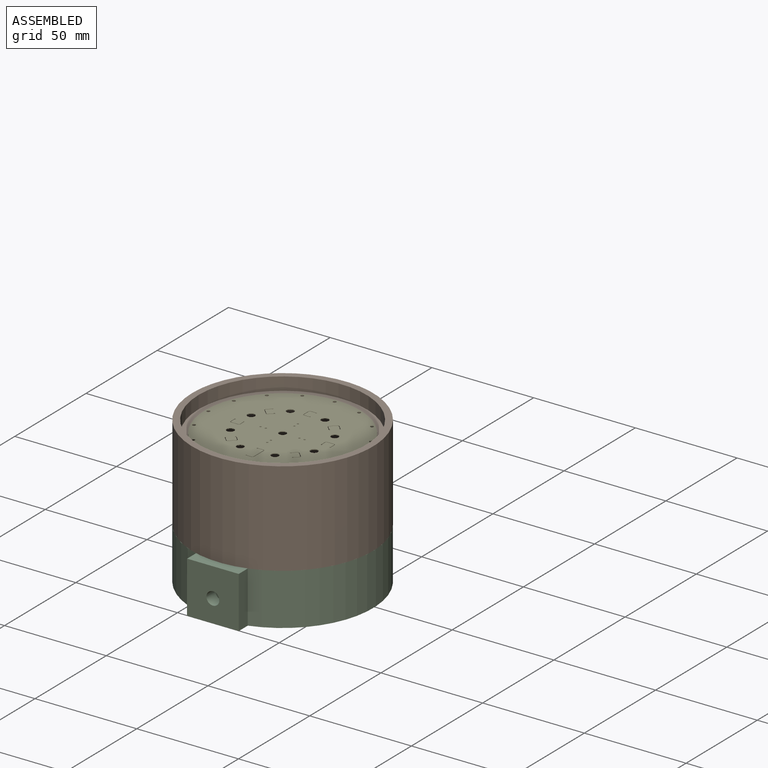
[diagram: assembled view]
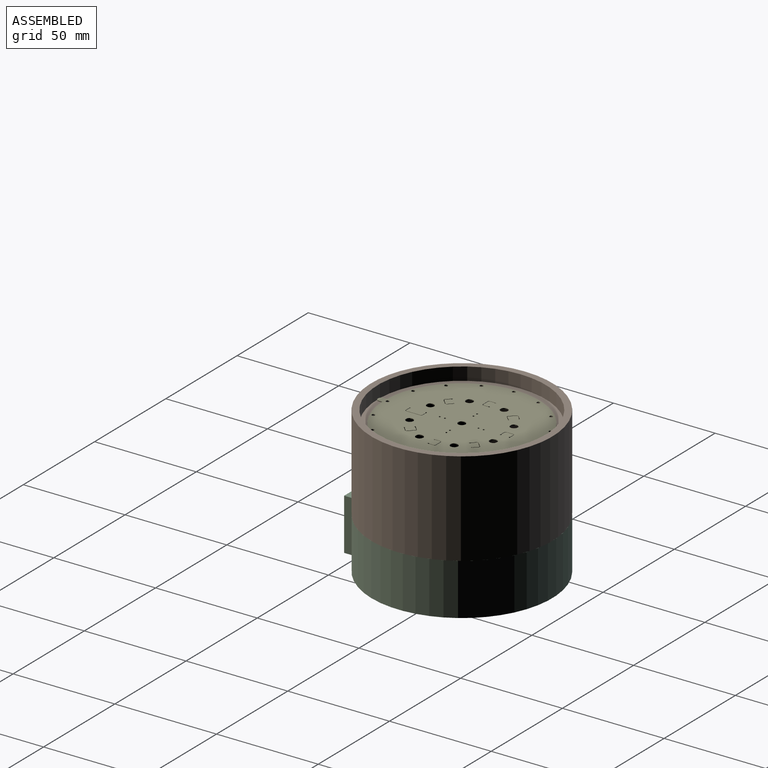
[diagram: assembled view, second angle]
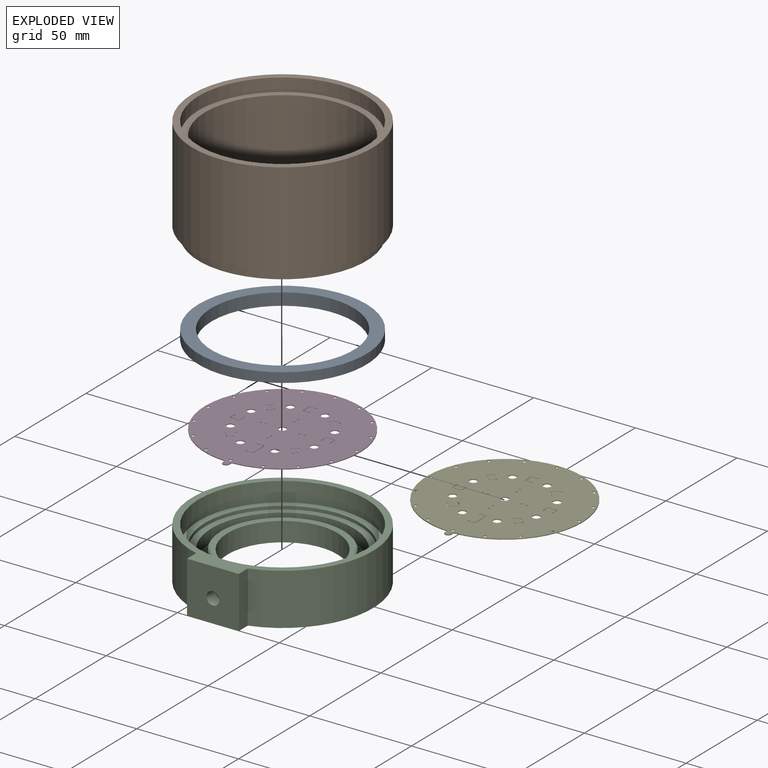
[diagram: exploded view]
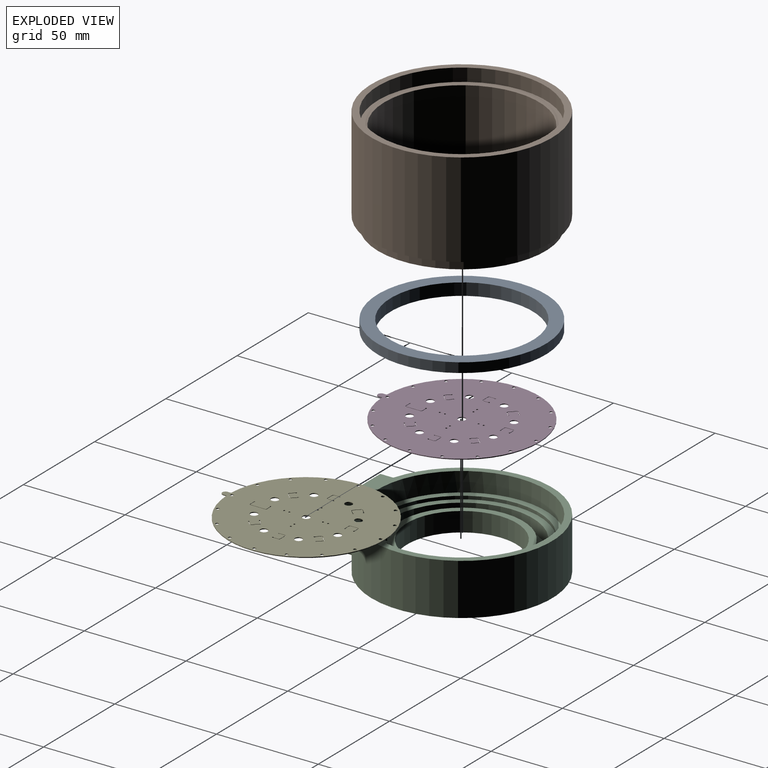
[diagram: exploded view, second angle]
ASSEMBLY  parts=5 mates=3
PART A: 6 faces, bbox 82.6x82.6x6 mm
  f0: plane 76.2x76.2mm, normal (0,0,-1), area 728.4mm2, adj f1,f5
  f1: cylinder r=38.1mm len=76.2mm, axis (0,0,-1), area 288.8mm2, adj f0,f2
  f2: plane 82.55x82.55mm, normal (0,0,-1), area 791.7mm2, adj f1,f3
  f3: cylinder r=41.27mm len=82.55mm, axis (0,0,-1), area 1235.1mm2, adj f2,f4
  f4: plane 82.55x82.55mm, normal (0,0,1), area 1520.1mm2, adj f3,f5
  f5: cylinder r=34.92mm len=69.85mm, axis (0,0,-1), area 1309.8mm2, adj f0,f4
PART B: 8 faces, bbox 88.9x88.9x51.2 mm
  f0: plane 82.55x82.55mm, normal (0,0,-1), area 791.7mm2, adj f1,f7
  f1: cylinder r=41.27mm len=82.55mm, axis (0,0,-1), area 1235.1mm2, adj f0,f2
  f2: plane 88.9x88.9mm, normal (0,0,-1), area 855.1mm2, adj f1,f3
  f3: cylinder r=44.45mm len=88.9mm, axis (0,0,-1), area 12964.1mm2, adj f2,f4
  f4: plane 88.9x88.9mm, normal (0,0,1), area 855.1mm2, adj f3,f5
  f5: cylinder r=41.27mm len=82.55mm, axis (0,0,-1), area 1646.8mm2, adj f4,f6
  f6: plane 82.55x82.55mm, normal (0,0,1), area 791.7mm2, adj f5,f7
  f7: cylinder r=38.1mm len=76.2mm, axis (0,0,-1), area 10732.1mm2, adj f0,f6
PART C: 43 faces, bbox 88.9x93.4x25.4 mm
  f0: cylinder r=1.59mm len=7.71mm, axis (0,1,0), area 76.7mm2, adj f1,f39
  f1: cylinder r=34.92mm len=69.85mm, axis (0,0,-1), area 1385.5mm2, adj f0,f8,f9
  f2: cylinder r=44.45mm len=88.9mm, axis (0,0,-1), area 6439.6mm2, adj f3,f4,f17,f18
  f3: plane 93.4x88.9mm, normal (0,0,-1), area 984.8mm2, adj f2,f16,f17,f18,f19
  f4: plane 93.4x88.9mm, normal (0,0,1), area 984.8mm2, adj f2,f5,f17,f18,f19
  f5: cylinder r=41.27mm len=82.55mm, axis (0,0,-1), area 2470.2mm2, adj f4,f6
  f6: plane 82.55x82.55mm, normal (0,0,1), area 782.7mm2, adj f5,f7,f40,f41,f42
  f7: cylinder r=38.1mm len=76.2mm, axis (0,0,-1), area 375mm2, adj f6,f8,f40,f42
  f8: plane 79.38x76.2mm, normal (0,0,1), area 737.4mm2, adj f1,f7,f40,f41,f42
  f9: plane 69.85x69.85mm, normal (0,0,1), area 831.3mm2, adj f1,f10,f20,f21,f22,f23,f24,f25
  f10: cylinder r=30.16mm len=60.33mm, axis (0,0,-1), area 1203.4mm2, adj f9,f11
  f11: plane 60.33x60.33mm, normal (0,0,1), area 570mm2, adj f10,f12
  f12: cylinder r=26.99mm len=53.98mm, axis (0,0,-1), area 1615.1mm2, adj f11,f13
  f13: plane 76.2x76.2mm, normal (0,0,-1), area 2129.8mm2, adj f12,f14,f20,f21,f22,f23,f24,f25
  f14: cylinder r=38.1mm len=76.2mm, axis (0,0,-1), area 380mm2, adj f13,f15
  f15: plane 82.55x82.55mm, normal (0,0,-1), area 791.7mm2, adj f14,f16
  f16: cylinder r=41.27mm len=82.55mm, axis (0,0,-1), area 823.4mm2, adj f3,f15
  f17: plane 25.4x6.35mm, normal (-1,0,0), area 161.3mm2, adj f2,f3,f4,f19
  f18: plane 25.4x6.35mm, normal (1,0,0), area 161.3mm2, adj f2,f3,f4,f19
  f19: plane 25.4x25.4mm, normal (0,-1,0), area 613.5mm2, adj f3,f4,f17,f18,f38
  f20: cylinder r=1.59mm len=3.18mm, axis (0,0,1), area 31.7mm2, adj f9,f13
  f21: cylinder r=1.59mm len=3.18mm, axis (0,0,1), area 31.7mm2, adj f9,f13
  f22: cylinder r=1.59mm len=3.18mm, axis (0,0,1), area 31.7mm2, adj f9,f13
  f23: cylinder r=1.59mm len=3.18mm, axis (0,0,1), area 31.7mm2, adj f9,f13
  f24: cylinder r=1.59mm len=3.18mm, axis (0,0,1), area 31.7mm2, adj f9,f13
  f25: cylinder r=1.59mm len=3.18mm, axis (0,0,1), area 31.7mm2, adj f9,f13
  f26: cylinder r=1.59mm len=3.18mm, axis (0,0,1), area 31.7mm2, adj f9,f13
  f27: cylinder r=1.59mm len=3.18mm, axis (0,0,1), area 31.7mm2, adj f9,f13
  f28: cylinder r=1.59mm len=3.18mm, axis (0,0,1), area 31.7mm2, adj f9,f13
  f29: cylinder r=1.59mm len=3.18mm, axis (0,0,1), area 31.7mm2, adj f9,f13
  f30: cylinder r=1.59mm len=3.18mm, axis (0,0,1), area 31.7mm2, adj f9,f13
  f31: cylinder r=1.59mm len=3.18mm, axis (0,0,1), area 31.7mm2, adj f9,f13
  f32: cylinder r=1.59mm len=3.18mm, axis (0,0,1), area 31.7mm2, adj f9,f13
  f33: cylinder r=1.59mm len=3.18mm, axis (0,0,1), area 31.7mm2, adj f9,f13
  f34: cylinder r=1.59mm len=3.18mm, axis (0,0,1), area 31.7mm2, adj f9,f13
  f35: cylinder r=1.59mm len=3.18mm, axis (0,0,1), area 31.7mm2, adj f9,f13
  f36: cylinder r=1.59mm len=3.18mm, axis (0,0,1), area 31.7mm2, adj f9,f13
  f37: cylinder r=1.59mm len=3.18mm, axis (0,0,1), area 31.7mm2, adj f9,f13
  f38: cylinder r=3.17mm len=6.35mm, axis (0,-1,0), area 126.7mm2, adj f19,f39
  f39: plane 6.35x6.35mm, normal (0,-1,0), area 23.8mm2, adj f0,f38
  f40: plane 1.62x1.59mm, normal (1,0,0), area 2.6mm2, adj f6,f7,f8,f41
  f41: cylinder r=1.59mm len=3.18mm, axis (0,0,-1), area 7.9mm2, adj f6,f8,f40,f42
  f42: plane 1.62x1.59mm, normal (-1,0,0), area 2.6mm2, adj f6,f7,f8,f41
PART D: 167 faces, bbox 79.4x76.2x0.4 mm
  f0: cylinder r=0.44mm len=0.89mm, axis (0,0,1), area 1.1mm2, adj f144,f145
  f1: cylinder r=0.44mm len=0.89mm, axis (0,0,1), area 1.1mm2, adj f144,f145
  f2: cylinder r=0.44mm len=0.89mm, axis (0,0,1), area 1.1mm2, adj f144,f145
  f3: cylinder r=0.44mm len=0.89mm, axis (0,0,1), area 1.1mm2, adj f144,f145
  f4: cylinder r=0.44mm len=0.89mm, axis (0,0,1), area 1.1mm2, adj f144,f145
  f5: cylinder r=0.44mm len=0.89mm, axis (0,0,1), area 1.1mm2, adj f144,f145
  f6: cylinder r=38.1mm len=76.2mm, axis (0,0,-1), area 90mm2, adj f144,f145,f162,f164
  f7: plane 2.29x0.38mm, normal (1,0,0), area 0.9mm2, adj f8,f143,f144,f145
  f8: cylinder r=0.51mm len=0.51mm, axis (0,0,-1), area 0.3mm2, adj f7,f9,f144,f145
  f9: plane 3.3x0.38mm, normal (0,1,0), area 1.3mm2, adj f8,f10,f144,f145
  f10: cylinder r=0.51mm len=0.51mm, axis (0,0,-1), area 0.3mm2, adj f9,f11,f144,f145
  f11: plane 2.29x0.38mm, normal (-1,0,0), area 0.9mm2, adj f10,f12,f144,f145
  f12: plane 0.38x0.38mm, normal (-0.71,-0.71,0), area 0.2mm2, adj f11,f13,f144,f145
  f13: plane 0.38x0.38mm, normal (-0.71,0.71,0), area 0.2mm2, adj f12,f14,f144,f145
  f14: plane 0.38x0.25mm, normal (0,1,0), area 0.1mm2, adj f13,f15,f144,f145
  f15: plane 3.05x0.38mm, normal (1,0,0), area 1.2mm2, adj f14,f16,f144,f145
  f16: cylinder r=0.76mm len=0.76mm, axis (0,0,-1), area 0.5mm2, adj f15,f17,f144,f145
  f17: plane 3.3x0.38mm, normal (0,-1,0), area 1.3mm2, adj f16,f18,f144,f145
  f18: cylinder r=0.76mm len=0.76mm, axis (0,0,-1), area 0.5mm2, adj f17,f19,f144,f145
  f19: plane 3.05x0.38mm, normal (-1,0,0), area 1.2mm2, adj f18,f20,f144,f145
  f20: plane 0.38x0.25mm, normal (0,1,0), area 0.1mm2, adj f19,f21,f144,f145
  f21: plane 0.38x0.38mm, normal (0.71,0.71,0), area 0.2mm2, adj f20,f143,f144,f145
  f22: plane 0.38x0.18mm, normal (-0.71,0.71,0), area 0.1mm2, adj f23,f127,f144,f145
  f23: plane 0.54x0.38mm, normal (0,1,0), area 0.2mm2, adj f22,f24,f144,f145
  f24: plane 0.54x0.38mm, normal (1,0,0), area 0.2mm2, adj f23,f25,f144,f145
  f25: plane 1.62x1.62mm, normal (0.71,0.71,0), area 0.9mm2, adj f24,f26,f144,f145
  f26: cylinder r=0.51mm len=0.72mm, axis (0,0,-1), area 0.3mm2, adj f25,f27,f144,f145
  f27: plane 2.34x2.34mm, normal (-0.71,0.71,0), area 1.3mm2, adj f26,f28,f144,f145
  f28: cylinder r=0.51mm len=0.72mm, axis (0,0,-1), area 0.3mm2, adj f27,f29,f144,f145
  f29: plane 1.62x1.62mm, normal (-0.71,-0.71,0), area 0.9mm2, adj f28,f30,f144,f145
  f30: plane 0.54x0.38mm, normal (0,-1,0), area 0.2mm2, adj f29,f31,f144,f145
  f31: plane 0.54x0.38mm, normal (-1,0,0), area 0.2mm2, adj f30,f32,f144,f145
  f32: plane 0.38x0.18mm, normal (-0.71,0.71,0), area 0.1mm2, adj f31,f33,f144,f145
  f33: plane 2.16x2.16mm, normal (0.71,0.71,0), area 1.2mm2, adj f32,f34,f144,f145
  f34: cylinder r=0.76mm len=1.08mm, axis (0,0,-1), area 0.5mm2, adj f33,f35,f144,f145
  f35: plane 2.34x2.34mm, normal (0.71,-0.71,0), area 1.3mm2, adj f34,f36,f144,f145
  f36: cylinder r=0.76mm len=1.08mm, axis (0,0,-1), area 0.5mm2, adj f35,f127,f144,f145
  f37: plane 0.38x0.25mm, normal (-1,0,0), area 0.1mm2, adj f38,f128,f144,f145
  f38: plane 0.38x0.38mm, normal (-0.71,0.71,0), area 0.2mm2, adj f37,f39,f144,f145
  f39: plane 0.38x0.38mm, normal (0.71,0.71,0), area 0.2mm2, adj f38,f40,f144,f145
  f40: plane 2.29x0.38mm, normal (0,1,0), area 0.9mm2, adj f39,f41,f144,f145
  f41: cylinder r=0.51mm len=0.51mm, axis (0,0,-1), area 0.3mm2, adj f40,f42,f144,f145
  f42: plane 3.3x0.38mm, normal (-1,0,0), area 1.3mm2, adj f41,f43,f144,f145
  f43: cylinder r=0.51mm len=0.51mm, axis (0,0,-1), area 0.3mm2, adj f42,f44,f144,f145
  f44: plane 2.29x0.38mm, normal (0,-1,0), area 0.9mm2, adj f43,f45,f144,f145
  f45: plane 0.38x0.38mm, normal (0.71,-0.71,0), area 0.2mm2, adj f44,f46,f144,f145
  f46: plane 0.38x0.38mm, normal (-0.71,-0.71,0), area 0.2mm2, adj f45,f47,f144,f145
  f47: plane 0.38x0.25mm, normal (-1,0,0), area 0.1mm2, adj f46,f48,f144,f145
  f48: plane 3.05x0.38mm, normal (0,1,0), area 1.2mm2, adj f47,f49,f144,f145
  f49: cylinder r=0.76mm len=0.76mm, axis (0,0,-1), area 0.5mm2, adj f48,f50,f144,f145
  f50: plane 3.3x0.38mm, normal (1,0,0), area 1.3mm2, adj f49,f51,f144,f145
  f51: cylinder r=0.76mm len=0.76mm, axis (0,0,-1), area 0.5mm2, adj f50,f128,f144,f145
  f52: plane 0.38x0.18mm, normal (-0.71,-0.71,0), area 0.1mm2, adj f53,f129,f144,f145
  f53: plane 0.54x0.38mm, normal (-1,0,0), area 0.2mm2, adj f52,f54,f144,f145
  f54: plane 0.54x0.38mm, normal (0,1,0), area 0.2mm2, adj f53,f55,f144,f145
  f55: plane 1.62x1.62mm, normal (-0.71,0.71,0), area 0.9mm2, adj f54,f56,f144,f145
  f56: cylinder r=0.51mm len=0.72mm, axis (0,0,-1), area 0.3mm2, adj f55,f57,f144,f145
  f57: plane 2.34x2.34mm, normal (-0.71,-0.71,0), area 1.3mm2, adj f56,f58,f144,f145
  f58: cylinder r=0.51mm len=0.72mm, axis (0,0,-1), area 0.3mm2, adj f57,f59,f144,f145
  f59: plane 1.62x1.62mm, normal (0.71,-0.71,0), area 0.9mm2, adj f58,f60,f144,f145
  f60: plane 0.54x0.38mm, normal (1,0,0), area 0.2mm2, adj f59,f61,f144,f145
  f61: plane 0.54x0.38mm, normal (0,-1,0), area 0.2mm2, adj f60,f62,f144,f145
  f62: plane 0.38x0.18mm, normal (-0.71,-0.71,0), area 0.1mm2, adj f61,f63,f144,f145
  f63: plane 2.16x2.16mm, normal (-0.71,0.71,0), area 1.2mm2, adj f62,f64,f144,f145
  f64: cylinder r=0.76mm len=1.08mm, axis (0,0,-1), area 0.5mm2, adj f63,f65,f144,f145
  f65: plane 2.34x2.34mm, normal (0.71,0.71,0), area 1.3mm2, adj f64,f66,f144,f145
  f66: cylinder r=0.76mm len=1.08mm, axis (0,0,-1), area 0.5mm2, adj f65,f129,f144,f145
  f67: plane 0.38x0.18mm, normal (0.71,-0.71,0), area 0.1mm2, adj f68,f130,f144,f145
  f68: plane 0.54x0.38mm, normal (0,-1,0), area 0.2mm2, adj f67,f69,f144,f145
  f69: plane 0.54x0.38mm, normal (-1,0,0), area 0.2mm2, adj f68,f70,f144,f145
  f70: plane 1.62x1.62mm, normal (-0.71,-0.71,0), area 0.9mm2, adj f69,f71,f144,f145
  f71: cylinder r=0.51mm len=0.72mm, axis (0,0,-1), area 0.3mm2, adj f70,f72,f144,f145
  f72: plane 2.34x2.34mm, normal (0.71,-0.71,0), area 1.3mm2, adj f71,f73,f144,f145
  f73: cylinder r=0.51mm len=0.72mm, axis (0,0,-1), area 0.3mm2, adj f72,f74,f144,f145
  f74: plane 1.62x1.62mm, normal (0.71,0.71,0), area 0.9mm2, adj f73,f75,f144,f145
  f75: plane 0.54x0.38mm, normal (0,1,0), area 0.2mm2, adj f74,f76,f144,f145
  f76: plane 0.54x0.38mm, normal (1,0,0), area 0.2mm2, adj f75,f77,f144,f145
  f77: plane 0.38x0.18mm, normal (0.71,-0.71,0), area 0.1mm2, adj f76,f78,f144,f145
  f78: plane 2.16x2.16mm, normal (-0.71,-0.71,0), area 1.2mm2, adj f77,f79,f144,f145
  f79: cylinder r=0.76mm len=1.08mm, axis (0,0,-1), area 0.5mm2, adj f78,f80,f144,f145
  f80: plane 2.34x2.34mm, normal (-0.71,0.71,0), area 1.3mm2, adj f79,f81,f144,f145
  f81: cylinder r=0.76mm len=1.08mm, axis (0,0,-1), area 0.5mm2, adj f80,f130,f144,f145
  f82: plane 0.38x0.25mm, normal (1,0,0), area 0.1mm2, adj f83,f131,f144,f145
  f83: plane 0.38x0.38mm, normal (0.71,-0.71,0), area 0.2mm2, adj f82,f84,f144,f145
  f84: plane 0.38x0.38mm, normal (-0.71,-0.71,0), area 0.2mm2, adj f83,f85,f144,f145
  f85: plane 2.29x0.38mm, normal (0,-1,0), area 0.9mm2, adj f84,f86,f144,f145
  f86: cylinder r=0.51mm len=0.51mm, axis (0,0,-1), area 0.3mm2, adj f85,f87,f144,f145
  f87: plane 3.3x0.38mm, normal (1,0,0), area 1.3mm2, adj f86,f88,f144,f145
  f88: cylinder r=0.51mm len=0.51mm, axis (0,0,-1), area 0.3mm2, adj f87,f89,f144,f145
  f89: plane 2.29x0.38mm, normal (0,1,0), area 0.9mm2, adj f88,f90,f144,f145
  f90: plane 0.38x0.38mm, normal (-0.71,0.71,0), area 0.2mm2, adj f89,f91,f144,f145
  f91: plane 0.38x0.38mm, normal (0.71,0.71,0), area 0.2mm2, adj f90,f92,f144,f145
  f92: plane 0.38x0.25mm, normal (1,0,0), area 0.1mm2, adj f91,f93,f144,f145
  f93: plane 3.05x0.38mm, normal (0,-1,0), area 1.2mm2, adj f92,f94,f144,f145
  f94: cylinder r=0.76mm len=0.76mm, axis (0,0,-1), area 0.5mm2, adj f93,f95,f144,f145
  f95: plane 3.3x0.38mm, normal (-1,0,0), area 1.3mm2, adj f94,f96,f144,f145
  f96: cylinder r=0.76mm len=0.76mm, axis (0,0,-1), area 0.5mm2, adj f95,f131,f144,f145
  f97: plane 0.38x0.18mm, normal (0.71,0.71,0), area 0.1mm2, adj f98,f132,f144,f145
  f98: plane 0.54x0.38mm, normal (1,0,0), area 0.2mm2, adj f97,f99,f144,f145
  f99: plane 0.54x0.38mm, normal (0,-1,0), area 0.2mm2, adj f98,f100,f144,f145
  f100: plane 1.62x1.62mm, normal (0.71,-0.71,0), area 0.9mm2, adj f99,f101,f144,f145
  f101: cylinder r=0.51mm len=0.72mm, axis (0,0,-1), area 0.3mm2, adj f100,f102,f144,f145
  f102: plane 2.34x2.34mm, normal (0.71,0.71,0), area 1.3mm2, adj f101,f103,f144,f145
  f103: cylinder r=0.51mm len=0.72mm, axis (0,0,-1), area 0.3mm2, adj f102,f104,f144,f145
  f104: plane 1.62x1.62mm, normal (-0.71,0.71,0), area 0.9mm2, adj f103,f105,f144,f145
  f105: plane 0.54x0.38mm, normal (-1,0,0), area 0.2mm2, adj f104,f106,f144,f145
  f106: plane 0.54x0.38mm, normal (0,1,0), area 0.2mm2, adj f105,f107,f144,f145
  f107: plane 0.38x0.18mm, normal (0.71,0.71,0), area 0.1mm2, adj f106,f108,f144,f145
  f108: plane 2.16x2.16mm, normal (0.71,-0.71,0), area 1.2mm2, adj f107,f109,f144,f145
  f109: cylinder r=0.76mm len=1.08mm, axis (0,0,-1), area 0.5mm2, adj f108,f110,f144,f145
  f110: plane 2.34x2.34mm, normal (-0.71,-0.71,0), area 1.3mm2, adj f109,f111,f144,f145
  f111: cylinder r=0.76mm len=1.08mm, axis (0,0,-1), area 0.5mm2, adj f110,f132,f144,f145
  f112: plane 0.38x0.25mm, normal (0,-1,0), area 0.1mm2, adj f113,f133,f144,f145
  f113: plane 0.38x0.38mm, normal (-0.71,-0.71,0), area 0.2mm2, adj f112,f114,f144,f145
  f114: plane 0.38x0.38mm, normal (-0.71,0.71,0), area 0.2mm2, adj f113,f115,f144,f145
  f115: plane 2.29x0.38mm, normal (-1,0,0), area 0.9mm2, adj f114,f116,f144,f145
  f116: cylinder r=0.51mm len=0.51mm, axis (0,0,-1), area 0.3mm2, adj f115,f117,f144,f145
  f117: plane 6.87x0.38mm, normal (0,-1,0), area 2.6mm2, adj f116,f118,f144,f145
  f118: cylinder r=0.51mm len=0.51mm, axis (0,0,-1), area 0.3mm2, adj f117,f119,f144,f145
  f119: plane 2.29x0.38mm, normal (1,0,0), area 0.9mm2, adj f118,f120,f144,f145
  f120: plane 0.38x0.38mm, normal (0.71,0.71,0), area 0.2mm2, adj f119,f121,f144,f145
  f121: plane 0.38x0.38mm, normal (0.71,-0.71,0), area 0.2mm2, adj f120,f122,f144,f145
  f122: plane 0.38x0.25mm, normal (0,-1,0), area 0.1mm2, adj f121,f123,f144,f145
  f123: plane 3.05x0.38mm, normal (-1,0,0), area 1.2mm2, adj f122,f124,f144,f145
  f124: cylinder r=0.76mm len=0.76mm, axis (0,0,-1), area 0.5mm2, adj f123,f125,f144,f145
  f125: plane 6.87x0.38mm, normal (0,1,0), area 2.6mm2, adj f124,f126,f144,f145
  f126: cylinder r=0.76mm len=0.76mm, axis (0,0,-1), area 0.5mm2, adj f125,f133,f144,f145
  f127: plane 2.16x2.16mm, normal (-0.71,-0.71,0), area 1.2mm2, adj f22,f36,f144,f145
  f128: plane 3.05x0.38mm, normal (0,-1,0), area 1.2mm2, adj f37,f51,f144,f145
  f129: plane 2.16x2.16mm, normal (0.71,-0.71,0), area 1.2mm2, adj f52,f66,f144,f145
  f130: plane 2.16x2.16mm, normal (0.71,0.71,0), area 1.2mm2, adj f67,f81,f144,f145
  f131: plane 3.05x0.38mm, normal (0,1,0), area 1.2mm2, adj f82,f96,f144,f145
  f132: plane 2.16x2.16mm, normal (-0.71,0.71,0), area 1.2mm2, adj f97,f111,f144,f145
  f133: plane 3.05x0.38mm, normal (1,0,0), area 1.2mm2, adj f112,f126,f144,f145
  f134: cylinder r=1.83mm len=3.66mm, axis (0,0,-1), area 4.4mm2, adj f144,f145
  f135: cylinder r=1.83mm len=3.66mm, axis (0,0,-1), area 4.4mm2, adj f144,f145
  f136: cylinder r=1.83mm len=3.66mm, axis (0,0,-1), area 4.4mm2, adj f144,f145
  f137: cylinder r=1.83mm len=3.66mm, axis (0,0,-1), area 4.4mm2, adj f144,f145
  f138: cylinder r=1.83mm len=3.66mm, axis (0,0,-1), area 4.4mm2, adj f144,f145
  f139: cylinder r=1.83mm len=3.66mm, axis (0,0,-1), area 4.4mm2, adj f144,f145
  f140: cylinder r=1.83mm len=3.66mm, axis (0,0,-1), area 4.4mm2, adj f144,f145
  f141: cylinder r=1.83mm len=3.66mm, axis (0,0,-1), area 4.4mm2, adj f144,f145
  f142: cylinder r=1.83mm len=3.66mm, axis (0,0,-1), area 4.4mm2, adj f144,f145
  f143: plane 0.38x0.38mm, normal (0.71,-0.71,0), area 0.2mm2, adj f7,f21,f144,f145
  f144: plane 79.38x76.2mm, normal (0,0,1), area 4411.8mm2, adj f0,f1,f2,f3,f4,f5,f6,f7
  f145: plane 79.38x76.2mm, normal (0,0,-1), area 4411.8mm2, adj f0,f1,f2,f3,f4,f5,f6,f7
  f146: cylinder r=0.79mm len=1.59mm, axis (0,0,1), area 1.9mm2, adj f144,f145
  f147: cylinder r=0.79mm len=1.59mm, axis (0,0,1), area 1.9mm2, adj f144,f145
  f148: cylinder r=0.79mm len=1.59mm, axis (0,0,1), area 1.9mm2, adj f144,f145
  f149: cylinder r=0.79mm len=1.59mm, axis (0,0,1), area 1.9mm2, adj f144,f145
  f150: cylinder r=0.79mm len=1.59mm, axis (0,0,1), area 1.9mm2, adj f144,f145
  f151: cylinder r=0.79mm len=1.59mm, axis (0,0,1), area 1.9mm2, adj f144,f145
  f152: cylinder r=0.79mm len=1.59mm, axis (0,0,1), area 1.9mm2, adj f144,f145
  f153: cylinder r=0.79mm len=1.59mm, axis (0,0,1), area 1.9mm2, adj f144,f145
  f154: cylinder r=0.79mm len=1.59mm, axis (0,0,1), area 1.9mm2, adj f144,f145
  f155: cylinder r=0.79mm len=1.59mm, axis (0,0,1), area 1.9mm2, adj f144,f145
  f156: cylinder r=0.79mm len=1.59mm, axis (0,0,1), area 1.9mm2, adj f144,f145
  f157: cylinder r=0.79mm len=1.59mm, axis (0,0,1), area 1.9mm2, adj f144,f145
  f158: cylinder r=0.79mm len=1.59mm, axis (0,0,1), area 1.9mm2, adj f144,f145
  f159: cylinder r=0.79mm len=1.59mm, axis (0,0,1), area 1.9mm2, adj f144,f145
  f160: cylinder r=0.79mm len=1.59mm, axis (0,0,1), area 1.9mm2, adj f144,f145
  f161: cylinder r=0.79mm len=1.59mm, axis (0,0,1), area 1.9mm2, adj f144,f145
  f162: plane 1.63x0.38mm, normal (0,1,0), area 0.6mm2, adj f6,f144,f145,f163
  f163: cylinder r=1.59mm len=3.18mm, axis (0,0,1), area 1.9mm2, adj f144,f145,f162,f164
  f164: plane 1.63x0.38mm, normal (0,-1,0), area 0.6mm2, adj f6,f144,f145,f163
  f165: cylinder r=0.44mm len=0.89mm, axis (0,0,1), area 1.1mm2, adj f144,f145
  f166: cylinder r=0.44mm len=0.89mm, axis (0,0,1), area 1.1mm2, adj f144,f145
PART E: same geometry as D
PLACE A t=(-29.68,-5.21,16.49)mm
PLACE B t=(-29.68,-5.21,22.46)mm
PLACE C t=(-29.68,-5.21,1.82)mm fixed
PLACE D rot(axis=(0,0,1),90deg) t=(-29.68,-5.2,16.11)mm
PLACE E rot(axis=(0,0,1),90deg) t=(-29.68,-5.2,67.29)mm
MATE fastened C.f1 <-> A.f1  axis (0,0,1) through (-29.68,-5.21,17.7)mm
MATE fastened D.f163 <-> C.f41  axis (0,0,-1) through (-29.68,-44.89,16.11)mm
MATE fastened C.f1 <-> B.f1  axis (0,0,1) through (-29.68,-5.21,27.22)mm
